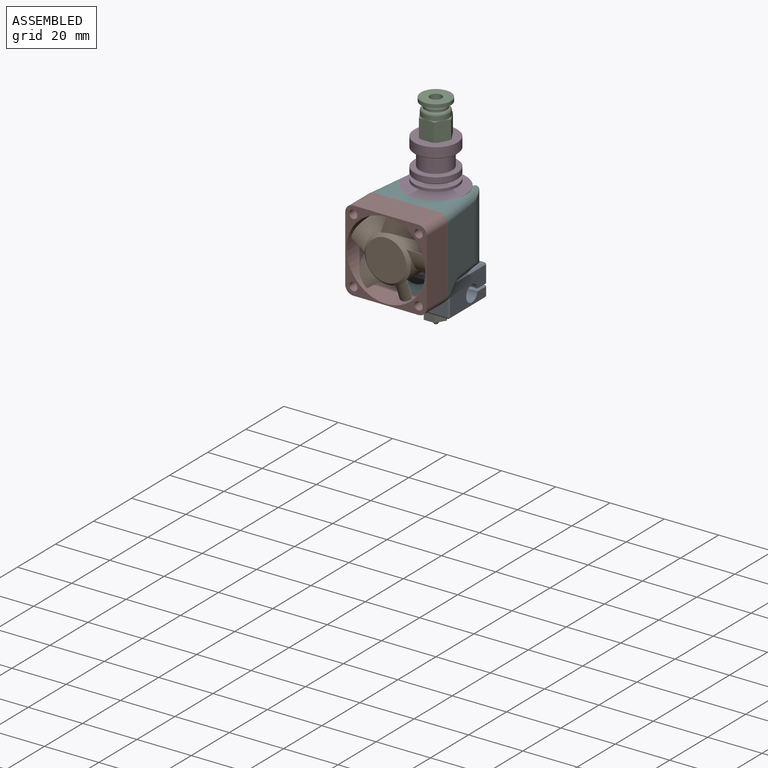
[diagram: assembled view]
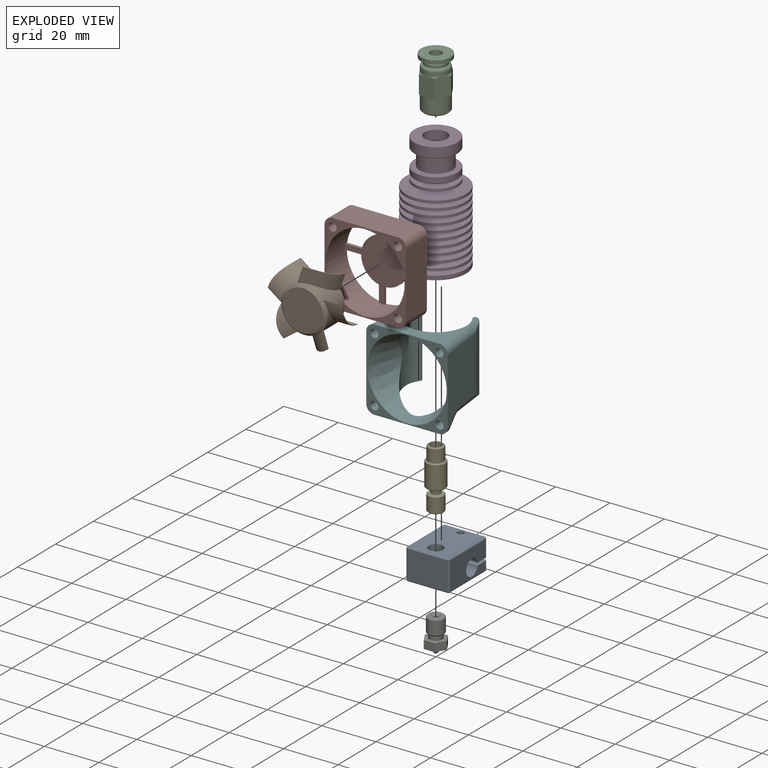
[diagram: exploded view]
GUIDED TOUR — MATED ASSEMBLY (Onshape document 2d66d5e1e2e1bf95124a7eb6, AutoMate assembly 2d66d5e1e2e1bf95124a7eb6_2da04dd0c05755130a3b2380_c94a7fb73f0819dea20de31b_default)

This assembly has 8 components, labeled P0..P7 below (a component is one placed occurrence of a part; the same part can appear more than once), held together by 7 mates. A mate is a constraint between two components; its type names the relative motion it leaves free:
  FASTENED — locks the two components together rigidly (no relative motion).
Axis/direction vectors are unit vectors and 'through' points are millimeter coordinates, both in the assembly's world frame.

MATES
  1. FASTENED "Fastened 6": P7 <-> P1, direction (0.000, -1.000, 0.000) through (-0.02, -16.20, 31.00) mm
  2. FASTENED "Fastened 2": P6 <-> P0, direction (0.000, 0.000, 1.000) through (0.00, 0.00, 5.00) mm
  3. FASTENED "Fastened 1": P6 <-> P4, direction (0.000, 0.000, 1.000) through (0.00, 0.00, 12.50) mm
  4. FASTENED "Fastened 5": P7 <-> P5, direction (0.000, 1.000, 0.000) through (11.98, -15.20, 19.00) mm
  5. FASTENED "Fastened 7": P2 <-> P3, direction (0.000, 0.000, -1.000) through (0.00, 0.00, 62.50) mm
  6. FASTENED "Fastened 4": P5 <-> P3, direction (0.000, 0.000, 1.000) through (0.00, 0.00, 46.00) mm
  7. FASTENED "Fastened 3": P3 <-> P4, direction (0.000, 0.000, -1.000) through (0.00, 0.00, 19.50) mm

ASSEMBLY ORDER
  1. P3 — the base component [order heuristic]
  2. P5 — core [order heuristic]
  3. P4 — core [order heuristic]
  4. P0 — core [order heuristic]
  5. P2 — core [order heuristic]
  6. P6 — core [order heuristic]
  7. P7 [order verified]
  8. P1 [order verified]
Order-tag legend:
  [order verified] — this step's position reverses a verified removal order: the component was checked to insert without passing through the ones already placed.
  [order heuristic] — the first 6 components form the assembly's core: parts whose collision-free extraction could not be verified, listed in mate-graph order.

Of the 8 components, 4 carry the full construction recipe — the FeatureScript program that regenerates the part's solid from scratch; the rest are supplied as boundary geometry only.
Each toured component is shown spotlighted twice — in the assembled view, then in the exploded view, where a leader line traces a displaced component back to its assembled socket (saturated green if recipe-attached, orange if geometry-only; every other component desaturated gray) — followed by its recipe or geometry summary and the mates that hold it.
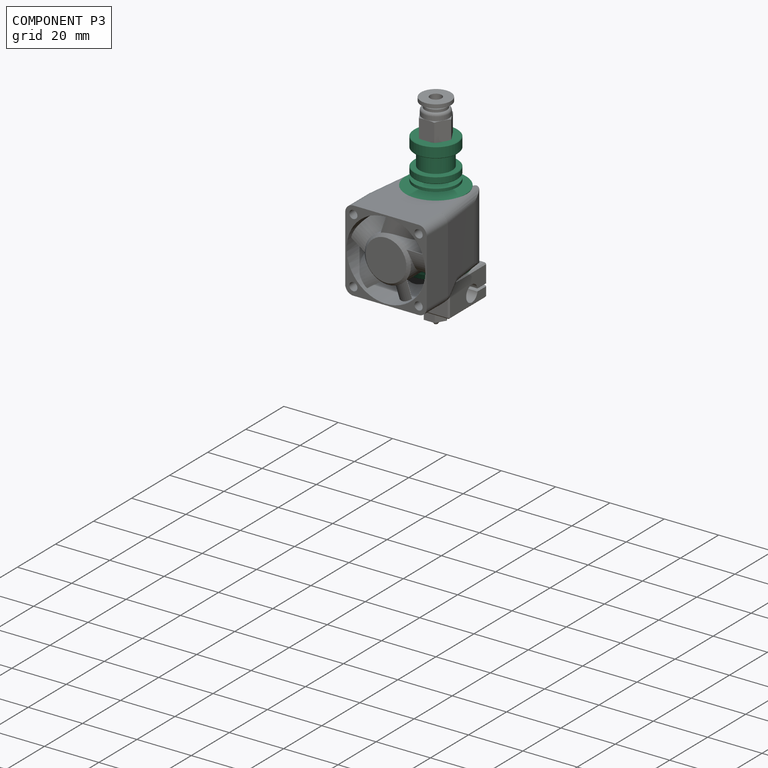
[diagram: component P3 — assembled]
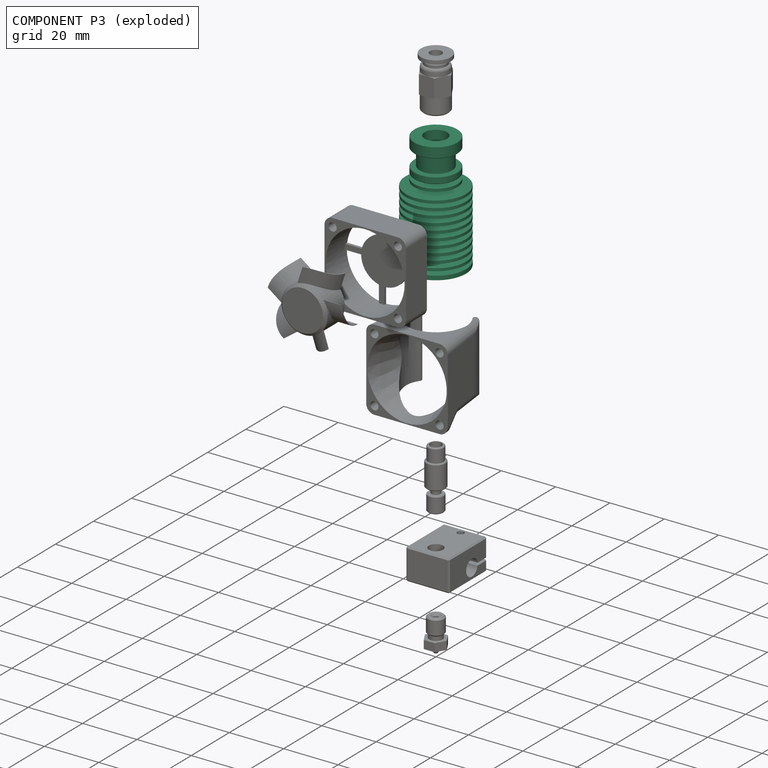
[diagram: component P3 — exploded]
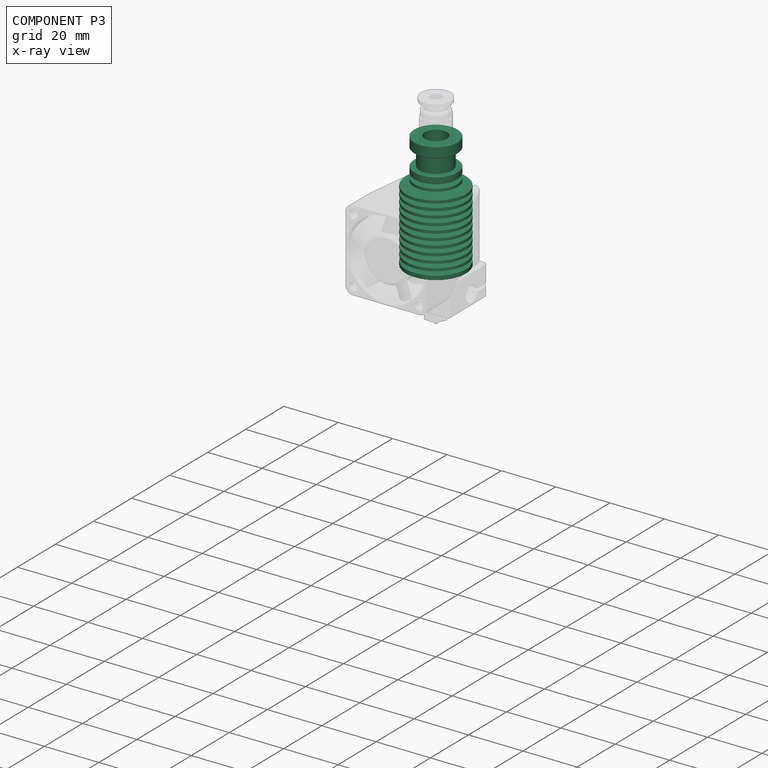
[diagram: component P3 — x-ray view]
COMPONENT P3 — recipe-attached (CADFS 00282401, mesh-verified: the recipe's output STEP matches this component's geometry to below the mesh-comparison resolution (tessellation chordal tolerance ~0.0798 mm)).
Held by: FASTENED mate "Fastened 7" to P2; FASTENED mate "Fastened 4" to P5; FASTENED mate "Fastened 3" to P4.
Construction recipe (FeatureScript — the CAD program that rebuilds this solid; sketch coordinates are in the units given by the * unit suffixes, e.g. mm):

FeatureScript 1511;
import(path : "onshape/std/geometry.fs", version : "1511.0");
import(path : "onshape/std/common.fs", version : "1511.0");
const mm = millimeter;
const VERTEX = EntityType.VERTEX;
const EDGE = EntityType.EDGE;
const FACE = EntityType.FACE;
const BODY = EntityType.BODY;
function v(x, y){return vector(x, y);}
function OD(order){return orderDisambiguation(order);}
function OSD(set){return originalSetDisambiguation(set);}
function TD(topology){return topologyDisambiguation(topology);}
function TDD(query){return trueDependencyDisambiguation(query);}
function sQuery(a, b, c) {return sketchEntityQuery(a, b, c);}

annotation { "Feature Type Name" : "Feature", "Feature Type Description" : "" }
export const myFeature = defineFeature(function(context is Context, id is Id, definition is map)
    precondition{}
    {
        {
            var Q0;
            Q0=qCreatedBy(makeId("Front.planeOp"),FACE);
            var sketch = newSketch(context, id + "F0", { "sketchPlane" : qUnion([Q0])});
            skLineSegment(sketch, "E0", {"start": v(0, 0) * mm, "end": v(0, 43) * mm, "construction": true});
            skLineSegment(sketch, "E1", {"start": v(4.1, 43) * mm, "end": v(8, 43) * mm});
            skLineSegment(sketch, "E2", {"start": v(8, 43) * mm, "end": v(8, 39) * mm});
            skLineSegment(sketch, "E3", {"start": v(8, 39) * mm, "end": v(6, 39) * mm});
            skLineSegment(sketch, "E4", {"start": v(6, 39) * mm, "end": v(6, 33) * mm});
            skLineSegment(sketch, "E5", {"start": v(6, 33) * mm, "end": v(8, 33) * mm});
            skLineSegment(sketch, "E6", {"start": v(8, 33) * mm, "end": v(8, 30.5) * mm});
            skLineSegment(sketch, "E7", {"start": v(8, 30.5) * mm, "end": v(4.1, 30.5) * mm});
            skLineSegment(sketch, "E8", {"start": v(4.1, 30.5) * mm, "end": v(4.1, 29) * mm});
            skLineSegment(sketch, "E9", {"start": v(4.1, 29) * mm, "end": v(8, 29) * mm});
            skLineSegment(sketch, "E10", {"start": v(8, 29) * mm, "end": v(8, 28) * mm});
            skLineSegment(sketch, "E11", {"start": v(8, 28) * mm, "end": v(4.1, 28) * mm});
            skLineSegment(sketch, "E12", {"start": v(4.1, 28) * mm, "end": v(4.1, 26.5) * mm});
            skLineSegment(sketch, "E13", {"start": v(4.1, 26.5) * mm, "end": v(11.1, 26.5) * mm});
            skLineSegment(sketch, "E14", {"start": v(11.1, 26.5) * mm, "end": v(11.1, 25.5) * mm});
            skLineSegment(sketch, "E15", {"start": v(11.1, 25.5) * mm, "end": v(4.1, 25.5) * mm});
            skLineSegment(sketch, "E16", {"start": v(4.1, 25.5) * mm, "end": v(4.1, 24) * mm});
            skLineSegment(sketch, "E17", {"start": v(4.1, 24) * mm, "end": v(11.1, 24) * mm});
            skLineSegment(sketch, "E18", {"start": v(11.1, 24) * mm, "end": v(11.1, 23) * mm});
            skLineSegment(sketch, "E19", {"start": v(11.1, 23) * mm, "end": v(4.1, 23) * mm});
            skLineSegment(sketch, "E20", {"start": v(4.1, 23) * mm, "end": v(4.1, 21.5) * mm});
            skLineSegment(sketch, "E21", {"start": v(4.1, 21.5) * mm, "end": v(11.1, 21.5) * mm});
            skLineSegment(sketch, "E22", {"start": v(11.1, 21.5) * mm, "end": v(11.1, 20.5) * mm});
            skLineSegment(sketch, "E23", {"start": v(11.1, 20.5) * mm, "end": v(4.1, 20.5) * mm});
            skLineSegment(sketch, "E24", {"start": v(4.1, 20.5) * mm, "end": v(4.1, 19) * mm});
            skLineSegment(sketch, "E25", {"start": v(4.1, 19) * mm, "end": v(11.1, 19) * mm});
            skLineSegment(sketch, "E26", {"start": v(11.1, 19) * mm, "end": v(11.1, 18) * mm});
            skLineSegment(sketch, "E27", {"start": v(11.1, 18) * mm, "end": v(4.1, 18) * mm});
            skLineSegment(sketch, "E28", {"start": v(4.1, 18) * mm, "end": v(4.1, 16.5) * mm});
            skLineSegment(sketch, "E29", {"start": v(4.1, 16.5) * mm, "end": v(11.1, 16.5) * mm});
            skLineSegment(sketch, "E30", {"start": v(11.1, 16.5) * mm, "end": v(11.1, 15.5) * mm});
            skLineSegment(sketch, "E31", {"start": v(11.1, 15.5) * mm, "end": v(4.1, 15.5) * mm});
            skLineSegment(sketch, "E32", {"start": v(4.1, 15.5) * mm, "end": v(4.1, 14) * mm});
            skLineSegment(sketch, "E33", {"start": v(4.1, 14) * mm, "end": v(11.1, 14) * mm});
            skLineSegment(sketch, "E34", {"start": v(11.1, 14) * mm, "end": v(11.1, 13) * mm});
            skLineSegment(sketch, "E35", {"start": v(11.1, 13) * mm, "end": v(4.1, 13) * mm});
            skLineSegment(sketch, "E36", {"start": v(4.1, 13) * mm, "end": v(4.1, 11.5) * mm});
            skLineSegment(sketch, "E37", {"start": v(4.1, 11.5) * mm, "end": v(11.1, 11.5) * mm});
            skLineSegment(sketch, "E38", {"start": v(11.1, 11.5) * mm, "end": v(11.1, 10.5) * mm});
            skLineSegment(sketch, "E39", {"start": v(11.1, 10.5) * mm, "end": v(4.1, 10.5) * mm});
            skLineSegment(sketch, "E40", {"start": v(4.1, 10.5) * mm, "end": v(4.1, 9) * mm});
            skLineSegment(sketch, "E41", {"start": v(4.1, 9) * mm, "end": v(11.1, 9) * mm});
            skLineSegment(sketch, "E42", {"start": v(11.1, 9) * mm, "end": v(11.1, 8) * mm});
            skLineSegment(sketch, "E43", {"start": v(11.1, 8) * mm, "end": v(4.1, 8) * mm});
            skLineSegment(sketch, "E44", {"start": v(4.1, 8) * mm, "end": v(4.1, 6.5) * mm});
            skLineSegment(sketch, "E45", {"start": v(4.1, 6.5) * mm, "end": v(11.1, 6.5) * mm});
            skLineSegment(sketch, "E46", {"start": v(11.1, 6.5) * mm, "end": v(11.1, 5.5) * mm});
            skLineSegment(sketch, "E47", {"start": v(11.1, 5.5) * mm, "end": v(4.1, 5.5) * mm});
            skLineSegment(sketch, "E48", {"start": v(4.1, 5.5) * mm, "end": v(4.1, 4) * mm});
            skLineSegment(sketch, "E49", {"start": v(4.1, 4) * mm, "end": v(11.1, 4) * mm});
            skLineSegment(sketch, "E50", {"start": v(11.1, 4) * mm, "end": v(11.1, 3) * mm});
            skLineSegment(sketch, "E51", {"start": v(11.1, 3) * mm, "end": v(4.1, 3) * mm});
            skLineSegment(sketch, "E52", {"start": v(4.1, 3) * mm, "end": v(4.1, 1.5) * mm});
            skLineSegment(sketch, "E53", {"start": v(4.1, 1.5) * mm, "end": v(11.1, 1.5) * mm});
            skLineSegment(sketch, "E54", {"start": v(11.1, 1.5) * mm, "end": v(11.1, 0) * mm});
            skLineSegment(sketch, "E55", {"start": v(11.1, 0) * mm, "end": v(3, 0) * mm});
            skLineSegment(sketch, "E56", {"start": v(4.1, 43) * mm, "end": v(4.1, 32.5) * mm});
            skLineSegment(sketch, "E57", {"start": v(4.1, 32.5) * mm, "end": v(2.1, 31.3) * mm});
            skLineSegment(sketch, "E58", {"start": v(2.1, 31.3) * mm, "end": v(2.1, 17.04) * mm});
            skLineSegment(sketch, "E59", {"start": v(2.1, 17.04) * mm, "end": v(3, 16.5) * mm});
            skLineSegment(sketch, "E60", {"start": v(3, 16.5) * mm, "end": v(3, 0) * mm});
            skSolve(sketch);
        }
        {
            var Q0;
            Q0=qSketchRegion(id+"F0",true);
            var Q1;
            Q1=sQuery(id+"F0.wireOp",EDGE,"E0");
            revolve(context, id + "F1", {"entities" : qUnion([Q0]), "axis" : qUnion([Q1]), "revolveType" : RevolveType.FULL});
        }
        {
            var Q0;
            Q0=makeQuery(id+"F1.opRevolve","SWEPT_EDGE",EDGE,{"disambiguationData":[OSD([sQuery(id+"F0.wireOp",EDGE,"E6"),sQuery(id+"F0.wireOp",EDGE,"E7")])]});
            var Q1;
            Q1=makeQuery(id+"F1.opRevolve","SWEPT_EDGE",EDGE,{"disambiguationData":[OSD([sQuery(id+"F0.wireOp",EDGE,"E5"),sQuery(id+"F0.wireOp",EDGE,"E6")])]});
            var Q2;
            Q2=makeQuery(id+"F1.opRevolve","SWEPT_EDGE",EDGE,{"disambiguationData":[OSD([sQuery(id+"F0.wireOp",EDGE,"E2"),sQuery(id+"F0.wireOp",EDGE,"E3")])]});
            var Q3;
            Q3=makeQuery(id+"F1.opRevolve","SWEPT_EDGE",EDGE,{"disambiguationData":[OSD([sQuery(id+"F0.wireOp",EDGE,"E1"),sQuery(id+"F0.wireOp",EDGE,"E2")])]});
            chamfer(context, id + "F2", {"entities" : qUnion([Q0, Q1, Q2, Q3]), "width" : 0.2 * mm, "tangentPropagation" : true});
        }
    });
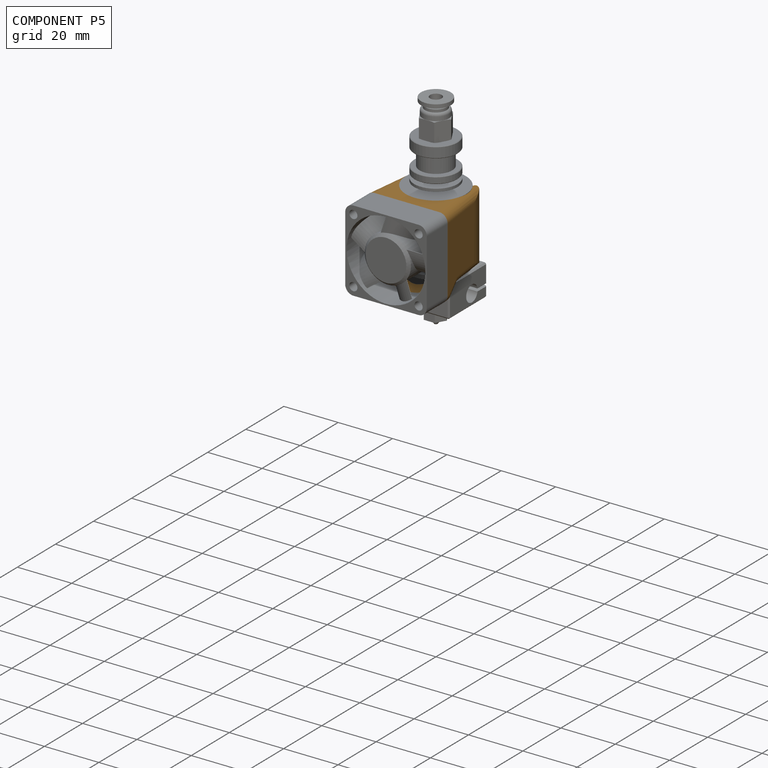
[diagram: component P5 — assembled]
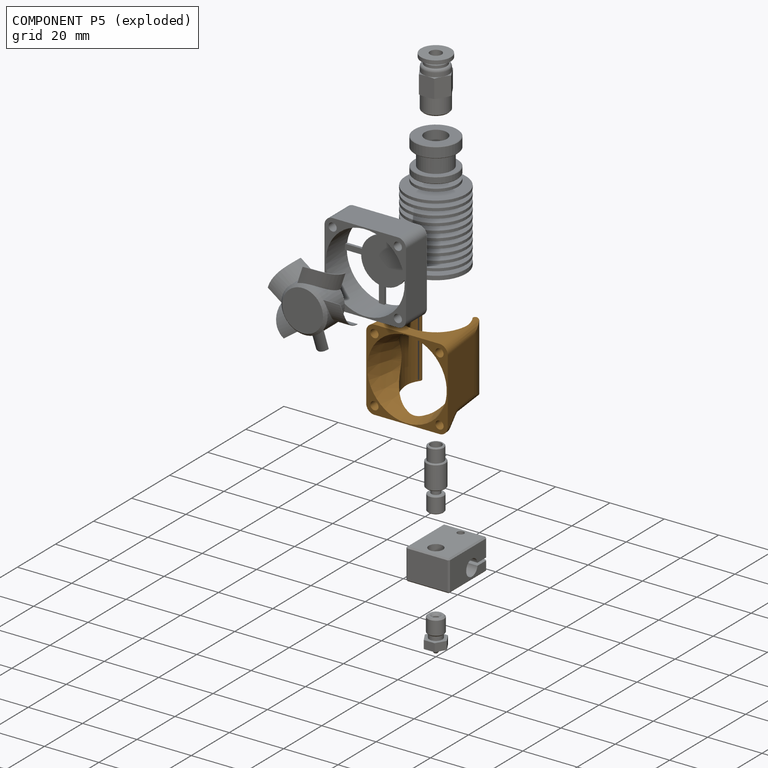
[diagram: component P5 — exploded]
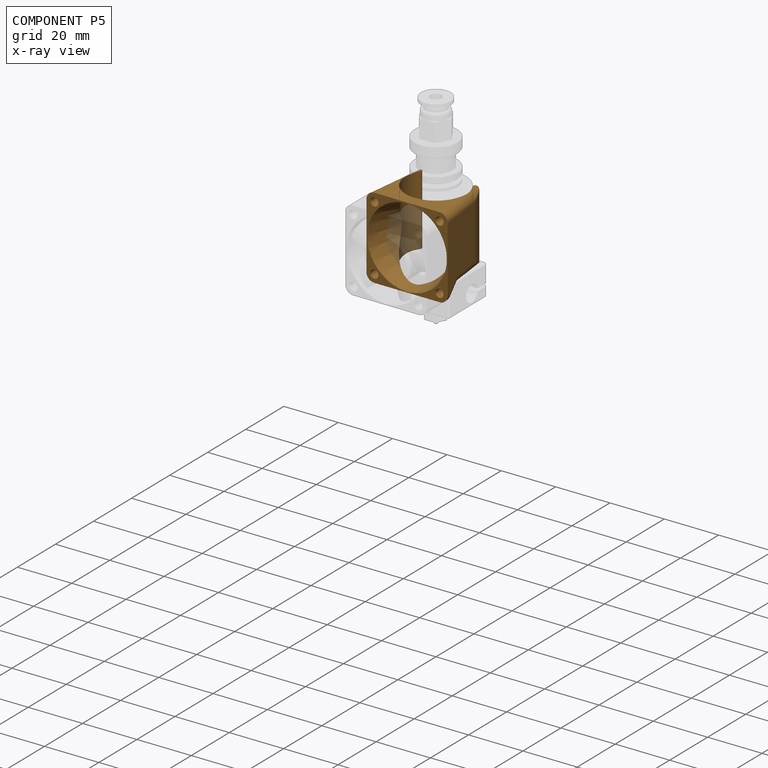
[diagram: component P5 — x-ray view]
COMPONENT P5 — geometry summary (no construction recipe available for this part):
  bounding box: 30.4 x 30.4 x 23.2 mm
  B-rep topology: 1 solid, 39 faces, 216 edges
  volume: 3423 mm^3 (16% of its bounding box)
  symmetry: mirror-symmetric across its y mid-plane
Held by: FASTENED mate "Fastened 5" to P7; FASTENED mate "Fastened 4" to P3.
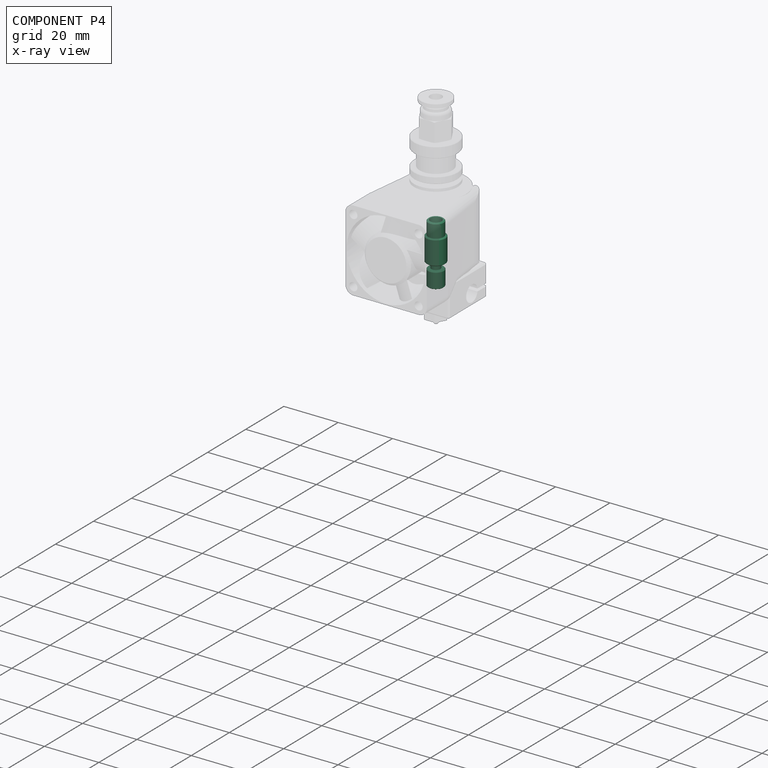
[diagram: component P4 — x-ray view]
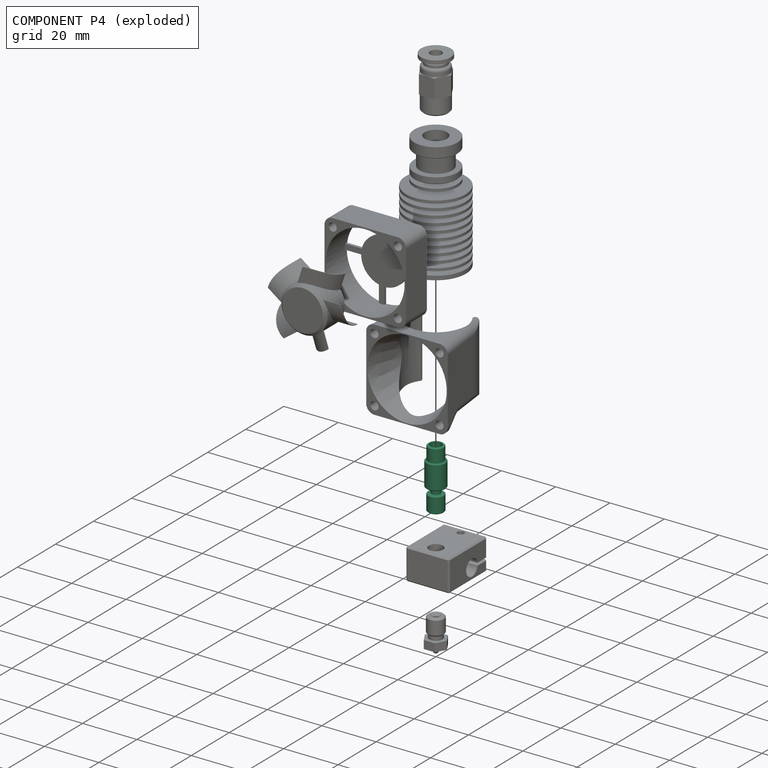
[diagram: component P4 — exploded]
COMPONENT P4 — recipe-attached (CADFS 00214408, mesh-verified: the recipe's output STEP matches this component's geometry to below the mesh-comparison resolution (tessellation chordal tolerance ~0.0362 mm)).
Held by: FASTENED mate "Fastened 1" to P6; FASTENED mate "Fastened 3" to P3.
Construction recipe (FeatureScript — the CAD program that rebuilds this solid; sketch coordinates are in the units given by the * unit suffixes, e.g. mm):

FeatureScript 1511;
import(path : "onshape/std/geometry.fs", version : "1511.0");
import(path : "onshape/std/common.fs", version : "1511.0");
const mm = millimeter;
const VERTEX = EntityType.VERTEX;
const EDGE = EntityType.EDGE;
const FACE = EntityType.FACE;
const BODY = EntityType.BODY;
function v(x, y){return vector(x, y);}
function OD(order){return orderDisambiguation(order);}
function OSD(set){return originalSetDisambiguation(set);}
function TD(topology){return topologyDisambiguation(topology);}
function TDD(query){return trueDependencyDisambiguation(query);}
function sQuery(a, b, c) {return sketchEntityQuery(a, b, c);}

annotation { "Feature Type Name" : "Feature", "Feature Type Description" : "" }
export const myFeature = defineFeature(function(context is Context, id is Id, definition is map)
    precondition{}
    {
        {
            var Q0;
            Q0=qCreatedBy(makeId("Front.planeOp"),FACE);
            var sketch = newSketch(context, id + "F0", { "sketchPlane" : qUnion([Q0])});
            skLineSegment(sketch, "E0", {"start": v(0, 0) * mm, "end": v(0, 22) * mm, "construction": true});
            skLineSegment(sketch, "E1", {"start": v(2.1, 22) * mm, "end": v(2.1, 9) * mm});
            skLineSegment(sketch, "E2", {"start": v(2.1, 9) * mm, "end": v(1, 8.34) * mm});
            skLineSegment(sketch, "E3", {"start": v(1, 8.34) * mm, "end": v(1, 0) * mm});
            skLineSegment(sketch, "E4", {"start": v(1, 0) * mm, "end": v(2.9, 0) * mm});
            skLineSegment(sketch, "E5", {"start": v(2.9, 0) * mm, "end": v(2.9, 6) * mm});
            skLineSegment(sketch, "E6", {"start": v(2.9, 6) * mm, "end": v(1.65, 6) * mm});
            skLineSegment(sketch, "E7", {"start": v(1.65, 6) * mm, "end": v(1.65, 8) * mm});
            skLineSegment(sketch, "E8", {"start": v(1.65, 8) * mm, "end": v(3.5, 8) * mm});
            skLineSegment(sketch, "E9", {"start": v(3.5, 8) * mm, "end": v(3.5, 17) * mm});
            skLineSegment(sketch, "E10", {"start": v(3.5, 17) * mm, "end": v(2.85, 17) * mm});
            skLineSegment(sketch, "E11", {"start": v(2.85, 17) * mm, "end": v(2.85, 22) * mm});
            skLineSegment(sketch, "E12", {"start": v(2.85, 22) * mm, "end": v(2.1, 22) * mm});
            skSolve(sketch);
        }
        {
            var Q0;
            Q0 = qSketchRegion(id + "F0", true);
            var Q1;
            Q1=sQuery(id+"F0.wireOp",EDGE,"E0");
            revolve(context, id + "F1", {"entities" : qUnion([Q0]), "axis" : qUnion([Q1]), "revolveType" : RevolveType.FULL});
        }
        {
            var Q0;
            Q0=makeQuery(id+"F1.opRevolve","SWEPT_EDGE",EDGE,{"disambiguationData":[OSD([sQuery(id+"F0.wireOp",EDGE,"E11"),sQuery(id+"F0.wireOp",EDGE,"E12")])]});
            var Q1;
            Q1=makeQuery(id+"F1.opRevolve","SWEPT_EDGE",EDGE,{"disambiguationData":[OSD([sQuery(id+"F0.wireOp",EDGE,"E9"),sQuery(id+"F0.wireOp",EDGE,"E10")])]});
            var Q2;
            Q2=makeQuery(id+"F1.opRevolve","SWEPT_EDGE",EDGE,{"disambiguationData":[OSD([sQuery(id+"F0.wireOp",EDGE,"E8"),sQuery(id+"F0.wireOp",EDGE,"E9")])]});
            var Q3;
            Q3=makeQuery(id+"F1.opRevolve","SWEPT_EDGE",EDGE,{"disambiguationData":[OSD([sQuery(id+"F0.wireOp",EDGE,"E5"),sQuery(id+"F0.wireOp",EDGE,"E6")])]});
            var Q4;
            Q4=makeQuery(id+"F1.opRevolve","SWEPT_EDGE",EDGE,{"disambiguationData":[OSD([sQuery(id+"F0.wireOp",EDGE,"E4"),sQuery(id+"F0.wireOp",EDGE,"E5")])]});
            chamfer(context, id + "F2", {"entities" : qUnion([Q0, Q1, Q2, Q3, Q4]), "width" : 0.3 * mm, "tangentPropagation" : true});
        }
    });
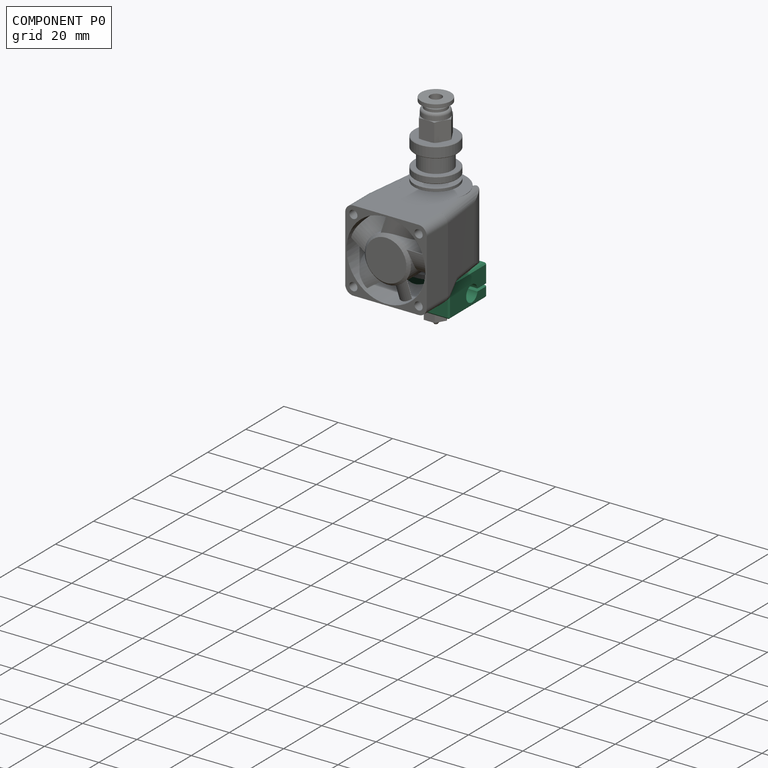
[diagram: component P0 — assembled]
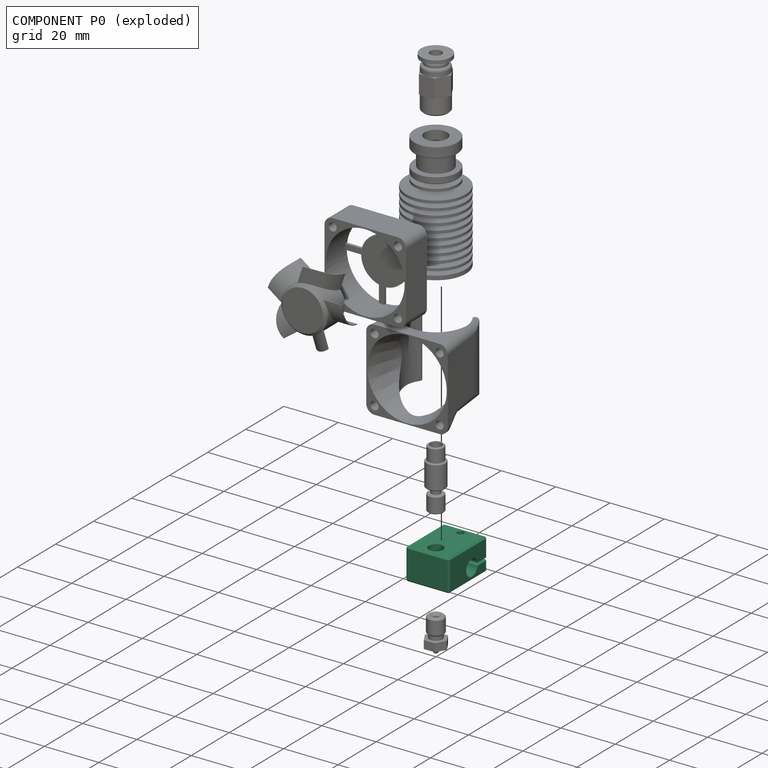
[diagram: component P0 — exploded]
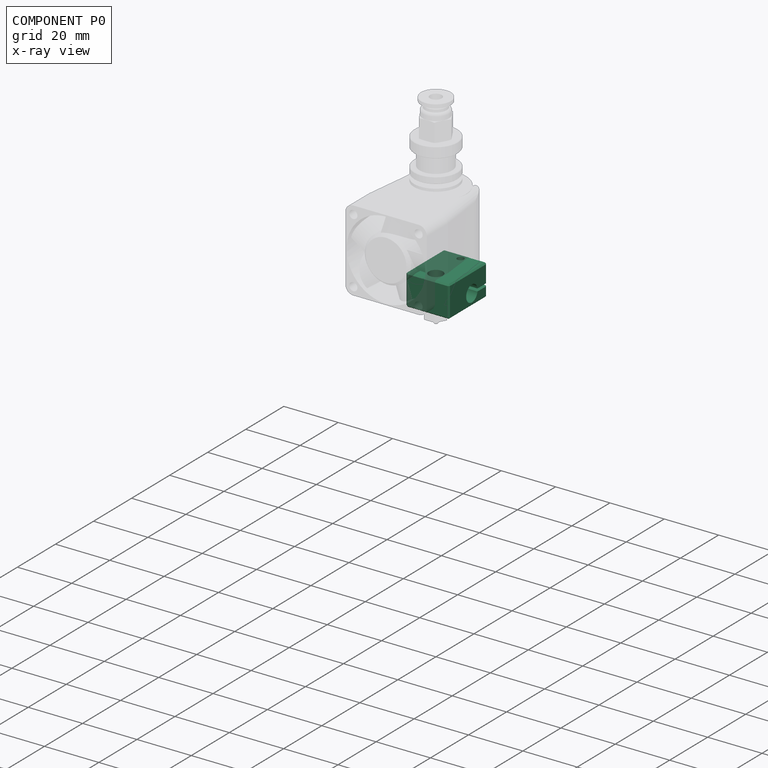
[diagram: component P0 — x-ray view]
COMPONENT P0 — recipe-attached (CADFS 00282406, mesh-verified: the recipe's output STEP matches this component's geometry to below the mesh-comparison resolution (tessellation chordal tolerance ~0.0422 mm)).
Held by: FASTENED mate "Fastened 2" to P6.
Construction recipe (FeatureScript — the CAD program that rebuilds this solid; sketch coordinates are in the units given by the * unit suffixes, e.g. mm):

FeatureScript 1511;
import(path : "onshape/std/geometry.fs", version : "1511.0");
import(path : "onshape/std/common.fs", version : "1511.0");
const mm = millimeter;
const VERTEX = EntityType.VERTEX;
const EDGE = EntityType.EDGE;
const FACE = EntityType.FACE;
const BODY = EntityType.BODY;
function v(x, y){return vector(x, y);}
function OD(order){return orderDisambiguation(order);}
function OSD(set){return originalSetDisambiguation(set);}
function TD(topology){return topologyDisambiguation(topology);}
function TDD(query){return trueDependencyDisambiguation(query);}
function sQuery(a, b, c) {return sketchEntityQuery(a, b, c);}

annotation { "Feature Type Name" : "Feature", "Feature Type Description" : "" }
export const myFeature = defineFeature(function(context is Context, id is Id, definition is map)
    precondition{}
    {
        {
            var Q0;
            Q0=qCreatedBy(makeId("Top.planeOp"),FACE);
            var sketch = newSketch(context, id + "F0", { "sketchPlane" : qUnion([Q0])});
            skLineSegment(sketch, "E0.bottom", {"start": v(0, 0) * mm, "end": v(16, 0) * mm});
            skLineSegment(sketch, "E0.top", {"start": v(0, 20) * mm, "end": v(16, 20) * mm});
            skLineSegment(sketch, "E0.left", {"start": v(0, 0) * mm, "end": v(0, 20) * mm});
            skLineSegment(sketch, "E0.right", {"start": v(16, 0) * mm, "end": v(16, 20) * mm});
            skCircle(sketch, "E1", {"center": v(8, 4.5) * mm, "radius": 2.6 * mm});
            skCircle(sketch, "E2", {"center": v(8, 17.5) * mm, "radius": 1.25 * mm});
            skSolve(sketch);
        }
        {
            var Q0;
            Q0=qSketchRegion(id+"F0",true);
            extrude(context, id + "F1", {"entities" : qUnion([Q0]), "depth" : 11.6 * mm});
        }
        {
            var Q0;
            Q0=makeQuery(id+"F1.opExtrude","SWEPT_FACE",FACE,{"disambiguationData":[OSD([sQuery(id+"F0.wireOp",EDGE,"E0.right")])]});
            var sketch = newSketch(context, id + "F2", { "sketchPlane" : qUnion([Q0])});
            skArc(sketch, "E3", {"start": v(14.96, 7.85) * mm, "mid": v(9, 7.35) * mm, "end": v(14.96, 6.85) * mm});
            skLineSegment(sketch, "E4", {"start": v(12, 7.35) * mm, "end": v(20, 7.35) * mm, "construction": true});
            skLineSegment(sketch, "E5.0", {"start": v(14.96, 6.85) * mm, "end": v(21.96, 6.85) * mm});
            skLineSegment(sketch, "E6.0", {"start": v(14.96, 7.85) * mm, "end": v(21.96, 7.85) * mm});
            skLineSegment(sketch, "E7", {"start": v(21.96, 7.85) * mm, "end": v(21.96, 6.85) * mm});
            skSolve(sketch);
        }
        {
            var Q0;
            Q0=qSketchRegion(id+"F2",true);
            extrude(context, id + "F3", {"entities" : qUnion([Q0]), "operationType" : NewBodyOperationType.REMOVE, "endBound" : BoundingType.THROUGH_ALL, "oppositeDirection" : true, "depth" : 25 * mm});
        }
        {
            var Q0;
            Q0=makeQuery(id+"F1.opExtrude","SWEPT_FACE",FACE,{"disambiguationData":[OSD([sQuery(id+"F0.wireOp",EDGE,"E0.right")])]});
            var sketch = newSketch(context, id + "F4", { "sketchPlane" : qUnion([Q0])});
            skCircle(sketch, "E8", {"center": v(2, 9.6) * mm, "radius": 1.25 * mm});
            skCircle(sketch, "E9", {"center": v(3.5, 5.6) * mm, "radius": 1.25 * mm});
            skSolve(sketch);
        }
        {
            var Q0;
            Q0=qSketchRegion(id+"F4",true);
            extrude(context, id + "F5", {"entities" : qUnion([Q0]), "operationType" : NewBodyOperationType.REMOVE, "oppositeDirection" : true, "depth" : 5 * mm});
        }
        {
            var Q0;
            Q0=makeQuery(id+"F1.opExtrude","SWEPT_FACE",FACE,{"disambiguationData":[OSD([sQuery(id+"F0.wireOp",EDGE,"E0.bottom")])]});
            var Q1;
            Q1=makeQuery(id+"F1.opExtrude","CAP_EDGE",EDGE,{"disambiguationData":[OSD([sQuery(id+"F0.wireOp",EDGE,"E0.right")])],"isStart":false});
            var Q2;
            Q2=makeQuery(id+"F1.opExtrude","CAP_EDGE",EDGE,{"disambiguationData":[OSD([sQuery(id+"F0.wireOp",EDGE,"E0.right")])],"isStart":true});
            var Q3;
            {var subQ0=sQuery(id+"F0.wireOp",EDGE,"E0.right");var subQ1=sQuery(id+"F0.wireOp",EDGE,"E0.top");Q3=makeQuery(id+"F3.boolean.opBoolean","SPLIT",EDGE,{"disambiguationData":[TD([makeQuery(id+"F3.opExtrude","SWEPT_FACE",FACE,{"disambiguationData":[OSD([sQuery(id+"F2.wireOp",EDGE,"E5.0")])]})])],"derivedFrom":makeQuery(id+"F1.opExtrude","SWEPT_EDGE",EDGE,{"disambiguationData":[OSD([subQ1,subQ0])]})});}
            var Q4;
            {var subQ0=sQuery(id+"F0.wireOp",EDGE,"E0.right");var subQ1=sQuery(id+"F0.wireOp",EDGE,"E0.top");Q4=makeQuery(id+"F3.boolean.opBoolean","SPLIT",EDGE,{"disambiguationData":[TD([makeQuery(id+"F3.opExtrude","SWEPT_FACE",FACE,{"disambiguationData":[OSD([sQuery(id+"F2.wireOp",EDGE,"E6.0")])]})])],"derivedFrom":makeQuery(id+"F1.opExtrude","SWEPT_EDGE",EDGE,{"disambiguationData":[OSD([subQ1,subQ0])]})});}
            var Q5;
            {var subQ0=sQuery(id+"F0.wireOp",EDGE,"E0.left");var subQ1=sQuery(id+"F0.wireOp",EDGE,"E0.top");Q5=makeQuery(id+"F3.boolean.opBoolean","SPLIT",EDGE,{"disambiguationData":[TD([makeQuery(id+"F3.opExtrude","SWEPT_FACE",FACE,{"disambiguationData":[OSD([sQuery(id+"F2.wireOp",EDGE,"E6.0")])]})])],"derivedFrom":makeQuery(id+"F1.opExtrude","SWEPT_EDGE",EDGE,{"disambiguationData":[OSD([subQ1,subQ0])]})});}
            var Q6;
            Q6=makeQuery(id+"F1.opExtrude","CAP_EDGE",EDGE,{"disambiguationData":[OSD([sQuery(id+"F0.wireOp",EDGE,"E0.top")])],"isStart":false});
            var Q7;
            Q7=makeQuery(id+"F1.opExtrude","CAP_EDGE",EDGE,{"disambiguationData":[OSD([sQuery(id+"F0.wireOp",EDGE,"E0.top")])],"isStart":true});
            var Q8;
            {var subQ0=sQuery(id+"F0.wireOp",EDGE,"E0.left");var subQ1=sQuery(id+"F0.wireOp",EDGE,"E0.top");Q8=makeQuery(id+"F3.boolean.opBoolean","SPLIT",EDGE,{"disambiguationData":[TD([makeQuery(id+"F3.opExtrude","SWEPT_FACE",FACE,{"disambiguationData":[OSD([sQuery(id+"F2.wireOp",EDGE,"E5.0")])]})])],"derivedFrom":makeQuery(id+"F1.opExtrude","SWEPT_EDGE",EDGE,{"disambiguationData":[OSD([subQ1,subQ0])]})});}
            var Q9;
            Q9=makeQuery(id+"F1.opExtrude","CAP_EDGE",EDGE,{"disambiguationData":[OSD([sQuery(id+"F0.wireOp",EDGE,"E0.left")])],"isStart":false});
            var Q10;
            Q10=makeQuery(id+"F1.opExtrude","CAP_EDGE",EDGE,{"disambiguationData":[OSD([sQuery(id+"F0.wireOp",EDGE,"E0.left")])],"isStart":true});
            chamfer(context, id + "F6", {"entities" : qUnion([Q0, Q1, Q2, Q3, Q4, Q5, Q6, Q7, Q8, Q9, Q10]), "width" : 0.5 * mm, "tangentPropagation" : true});
        }
    });
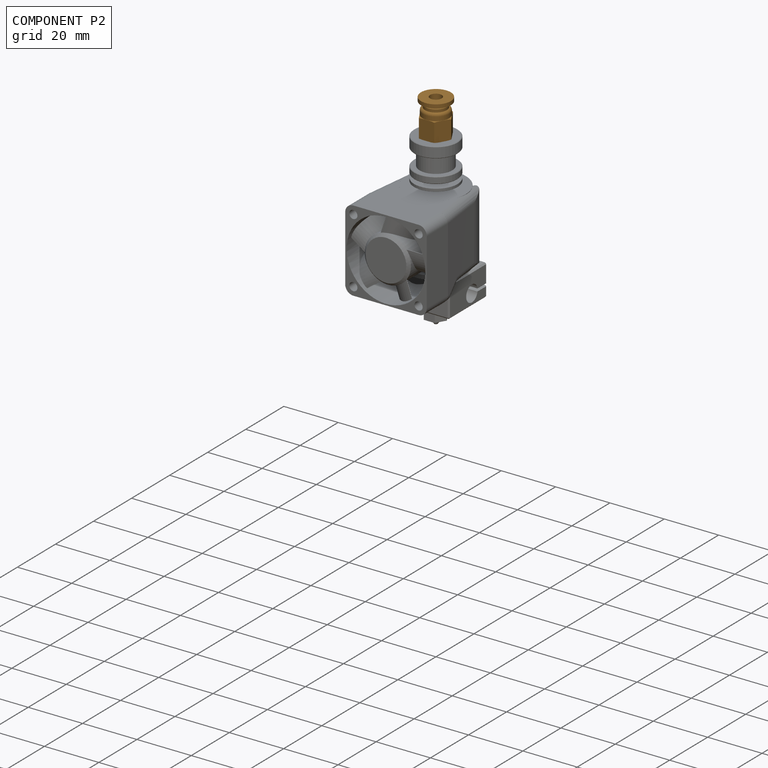
[diagram: component P2 — assembled]
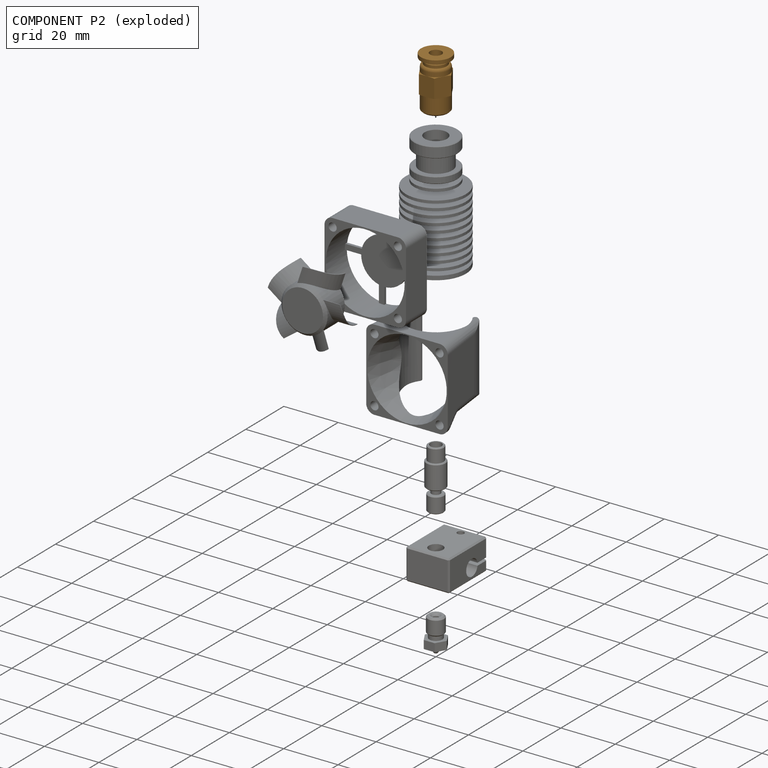
[diagram: component P2 — exploded]
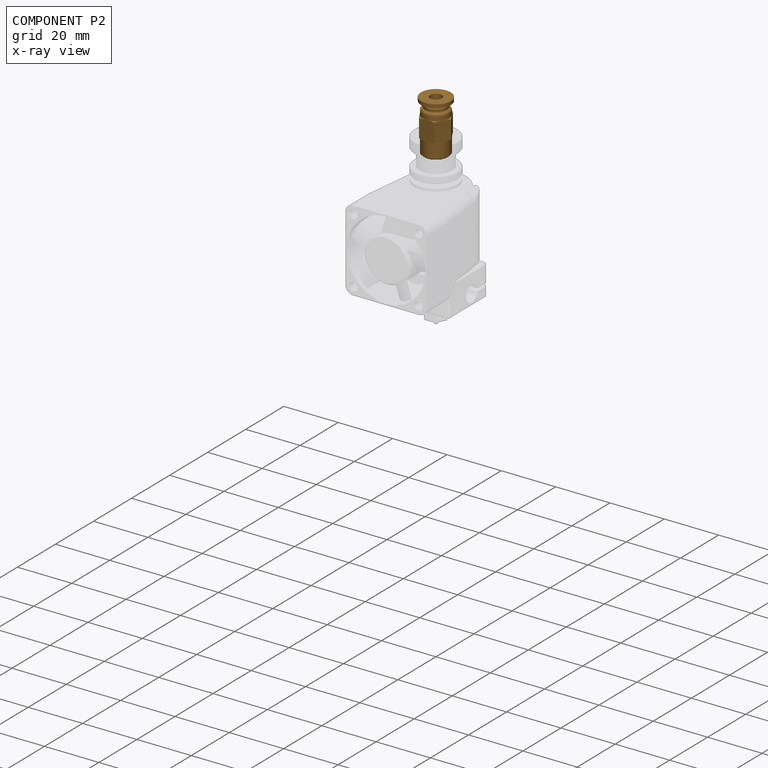
[diagram: component P2 — x-ray view]
COMPONENT P2 — geometry summary (no construction recipe available for this part):
  bounding box: 19.0 x 14.0 x 14.0 mm
  B-rep topology: 1 solid, 21 faces, 86 edges
  volume: 1145 mm^3 (31% of its bounding box)
  symmetry: 6-fold rotationally symmetric about the z axis; mirror-symmetric across its x mid-plane, y mid-plane
Held by: FASTENED mate "Fastened 7" to P3.
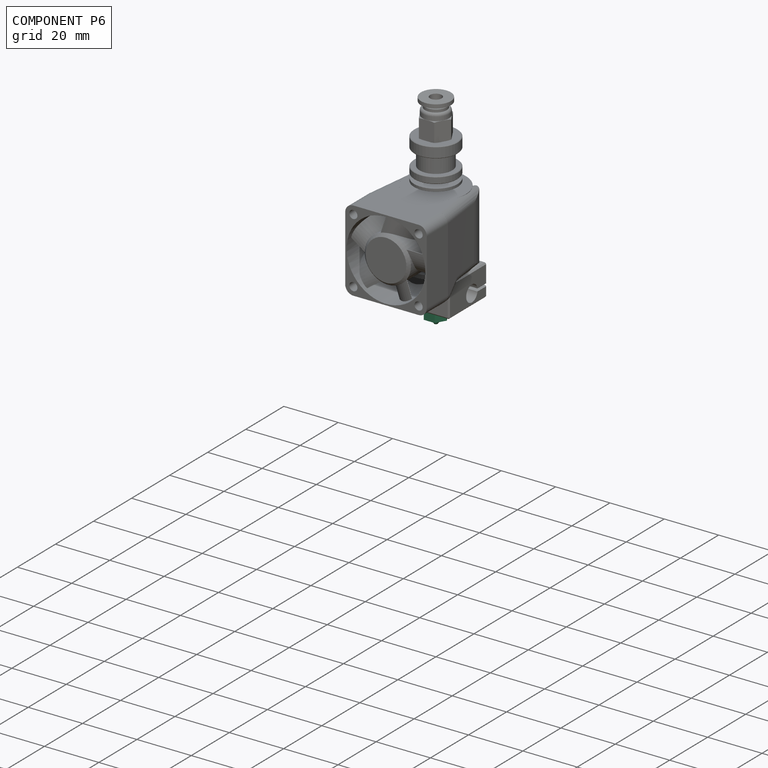
[diagram: component P6 — assembled]
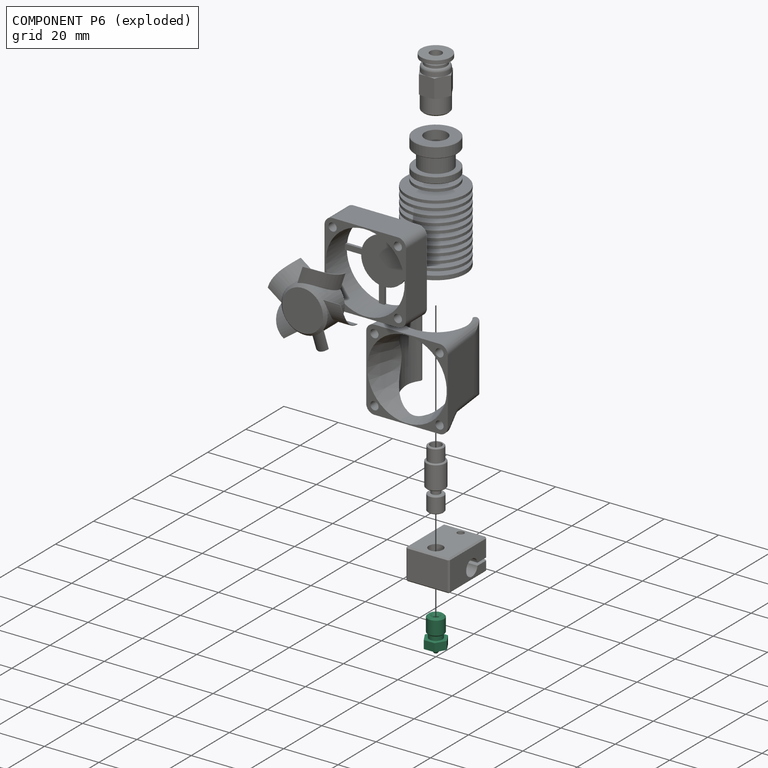
[diagram: component P6 — exploded]
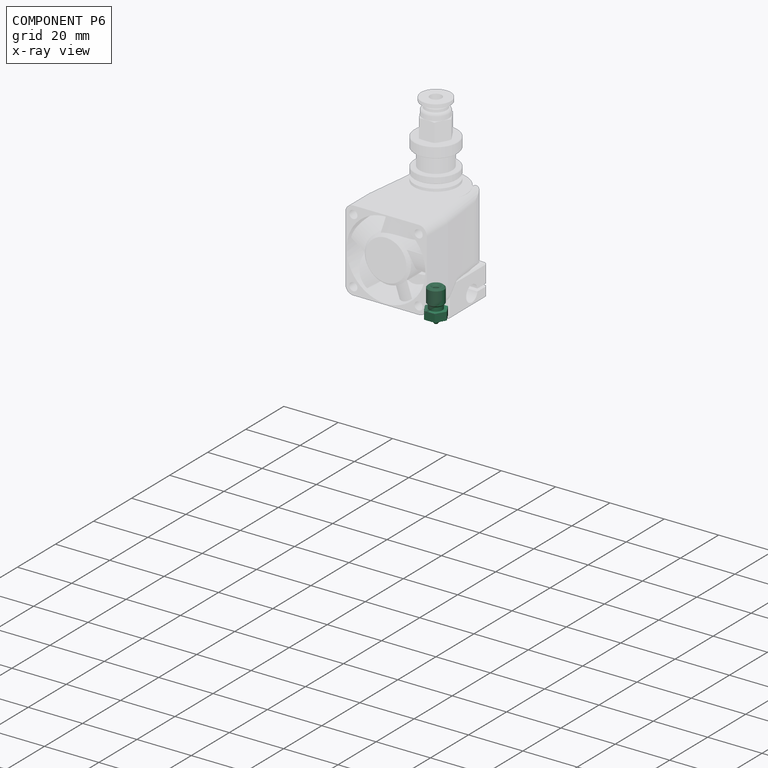
[diagram: component P6 — x-ray view]
COMPONENT P6 — recipe-attached (CADFS 00282407, mesh-verified: the recipe's output STEP matches this component's geometry to below the mesh-comparison resolution (tessellation chordal tolerance ~0.0247 mm)).
Held by: FASTENED mate "Fastened 2" to P0; FASTENED mate "Fastened 1" to P4.
Construction recipe (FeatureScript — the CAD program that rebuilds this solid; sketch coordinates are in the units given by the * unit suffixes, e.g. mm):

FeatureScript 1511;
import(path : "onshape/std/geometry.fs", version : "1511.0");
import(path : "onshape/std/common.fs", version : "1511.0");
const mm = millimeter;
const VERTEX = EntityType.VERTEX;
const EDGE = EntityType.EDGE;
const FACE = EntityType.FACE;
const BODY = EntityType.BODY;
function v(x, y){return vector(x, y);}
function OD(order){return orderDisambiguation(order);}
function OSD(set){return originalSetDisambiguation(set);}
function TD(topology){return topologyDisambiguation(topology);}
function TDD(query){return trueDependencyDisambiguation(query);}
function sQuery(a, b, c) {return sketchEntityQuery(a, b, c);}

annotation { "Feature Type Name" : "Feature", "Feature Type Description" : "" }
export const myFeature = defineFeature(function(context is Context, id is Id, definition is map)
    precondition{}
    {
        {
            var Q0;
            Q0=qCreatedBy(makeId("Front.planeOp"),FACE);
            var sketch = newSketch(context, id + "F0", { "sketchPlane" : qUnion([Q0])});
            skLineSegment(sketch, "E0", {"start": v(0, 0) * mm, "end": v(0, 12.5) * mm, "construction": true});
            skLineSegment(sketch, "E1", {"start": v(0.2, 0) * mm, "end": v(0.2, 1.5) * mm});
            skLineSegment(sketch, "E2", {"start": v(0.2, 0) * mm, "end": v(0.6, 0) * mm});
            skLineSegment(sketch, "E3", {"start": v(0.6, 0) * mm, "end": v(2.1, 2) * mm});
            skLineSegment(sketch, "E4", {"start": v(2.1, 2) * mm, "end": v(4.2, 2) * mm});
            skLineSegment(sketch, "E5", {"start": v(4.2, 2) * mm, "end": v(4.2, 5) * mm});
            skLineSegment(sketch, "E6", {"start": v(1, 12.5) * mm, "end": v(1, 1.98) * mm});
            skLineSegment(sketch, "E7", {"start": v(1, 1.98) * mm, "end": v(0.2, 1.5) * mm});
            skLineSegment(sketch, "E8", {"start": v(1, 12.5) * mm, "end": v(3, 12.5) * mm});
            skLineSegment(sketch, "E9", {"start": v(3, 12.5) * mm, "end": v(3, 6.5) * mm});
            skLineSegment(sketch, "E10", {"start": v(3, 6.5) * mm, "end": v(2.4, 6.5) * mm});
            skLineSegment(sketch, "E11", {"start": v(2.4, 6.5) * mm, "end": v(2.4, 5) * mm});
            skLineSegment(sketch, "E12", {"start": v(2.4, 5) * mm, "end": v(4.2, 5) * mm});
            skSolve(sketch);
        }
        {
            var Q0;
            Q0=qSketchRegion(id+"F0",true);
            var Q1;
            Q1=sQuery(id+"F0.wireOp",EDGE,"E0");
            revolve(context, id + "F1", {"entities" : qUnion([Q0]), "axis" : qUnion([Q1]), "revolveType" : RevolveType.FULL});
        }
        {
            var Q0;
            Q0=makeQuery(id+"F1.opRevolve","SWEPT_EDGE",EDGE,{"disambiguationData":[OSD([sQuery(id+"F0.wireOp",EDGE,"E9"),sQuery(id+"F0.wireOp",EDGE,"E10")])]});
            var Q1;
            Q1=makeQuery(id+"F1.opRevolve","SWEPT_EDGE",EDGE,{"disambiguationData":[OSD([sQuery(id+"F0.wireOp",EDGE,"E8"),sQuery(id+"F0.wireOp",EDGE,"E9")])]});
            chamfer(context, id + "F2", {"entities" : qUnion([Q0, Q1]), "width" : 0.5 * mm, "tangentPropagation" : true});
        }
        {
            var Q0;
            Q0=makeQuery(id+"F1.opRevolve","SWEPT_EDGE",EDGE,{"disambiguationData":[OSD([sQuery(id+"F0.wireOp",EDGE,"E6"),sQuery(id+"F0.wireOp",EDGE,"E8")])]});
            chamfer(context, id + "F3", {"entities" : qUnion([Q0]), "width" : 0.75 * mm, "tangentPropagation" : true});
        }
        {
            var Q0;
            Q0=makeQuery(id+"F1.opRevolve","SWEPT_FACE",FACE,{"disambiguationData":[OSD([sQuery(id+"F0.wireOp",EDGE,"E4")])]});
            var sketch = newSketch(context, id + "F4", { "sketchPlane" : qUnion([Q0])});
            skCircle(sketch, "E13.cCircle", {"center": v(0, 0) * mm, "radius": 3.5 * mm, "construction": true});
            skLineSegment(sketch, "E13.0", {"start": v(-2.02, -3.5) * mm, "end": v(-4.04, 0) * mm});
            skLineSegment(sketch, "E13.1", {"start": v(-4.04, 0) * mm, "end": v(-2.02, 3.5) * mm});
            skLineSegment(sketch, "E13.2", {"start": v(-2.02, 3.5) * mm, "end": v(2.02, 3.5) * mm});
            skLineSegment(sketch, "E13.3", {"start": v(2.02, 3.5) * mm, "end": v(4.04, 0) * mm});
            skLineSegment(sketch, "E13.4", {"start": v(4.04, 0) * mm, "end": v(2.02, -3.5) * mm});
            skLineSegment(sketch, "E13.5", {"start": v(2.02, -3.5) * mm, "end": v(-2.02, -3.5) * mm});
            skPoint(sketch, "E13.0.midPoint", {"position": v(-3.03, -1.75) * mm});
            skLineSegment(sketch, "E14", {"start": v(-4.04, 0) * mm, "end": v(0, 0) * mm, "construction": true});
            skCircle(sketch, "E15", {"center": v(0, 0) * mm, "radius": 5 * mm});
            skSolve(sketch);
        }
        {
            var Q0;
            Q0=qSketchRegion(id+"F4",true);
            extrude(context, id + "F5", {"entities" : qUnion([Q0]), "operationType" : NewBodyOperationType.REMOVE, "endBound" : BoundingType.THROUGH_ALL, "oppositeDirection" : true, "depth" : 25 * mm});
        }
    });
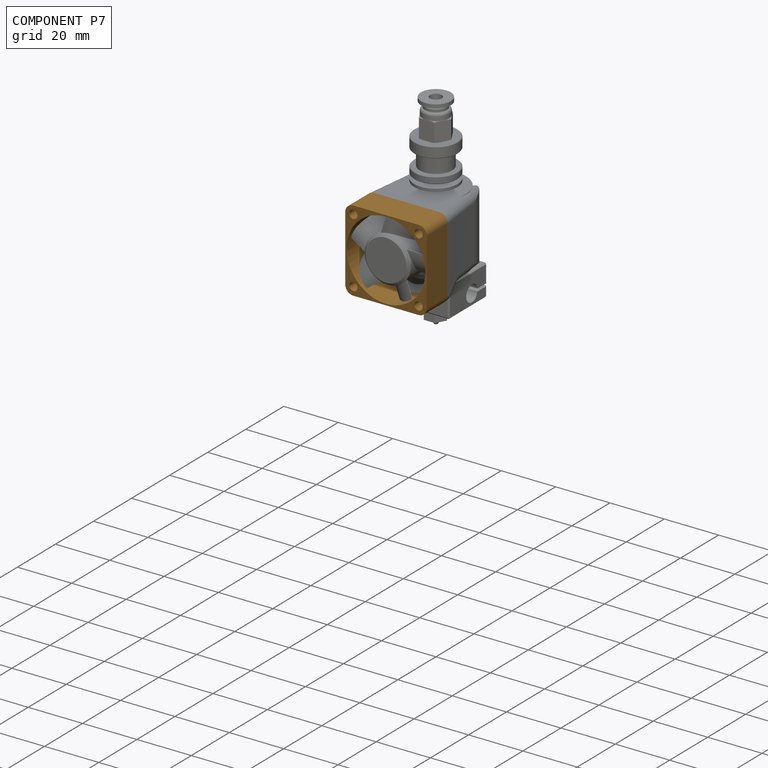
[diagram: component P7 — assembled]
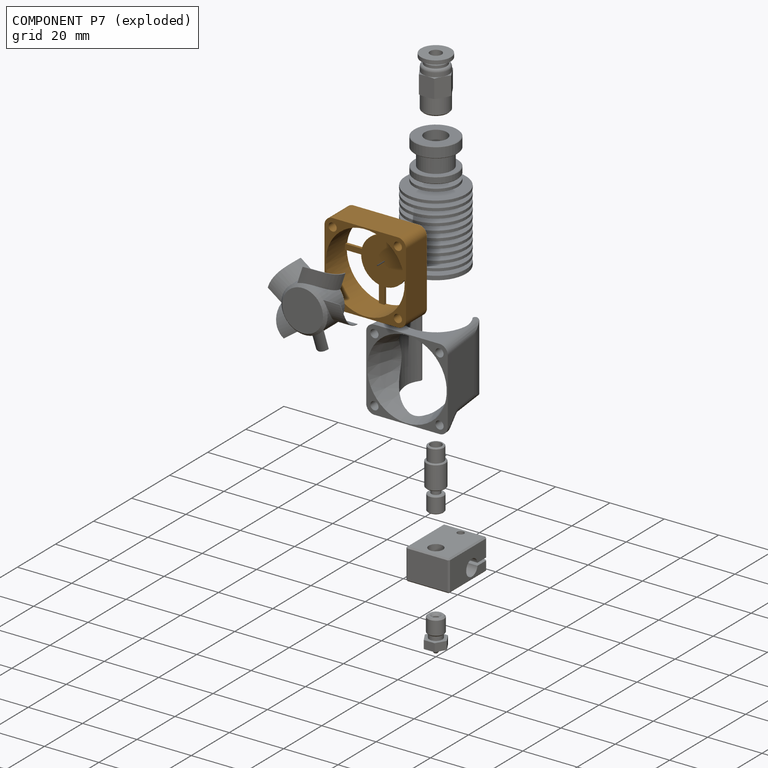
[diagram: component P7 — exploded]
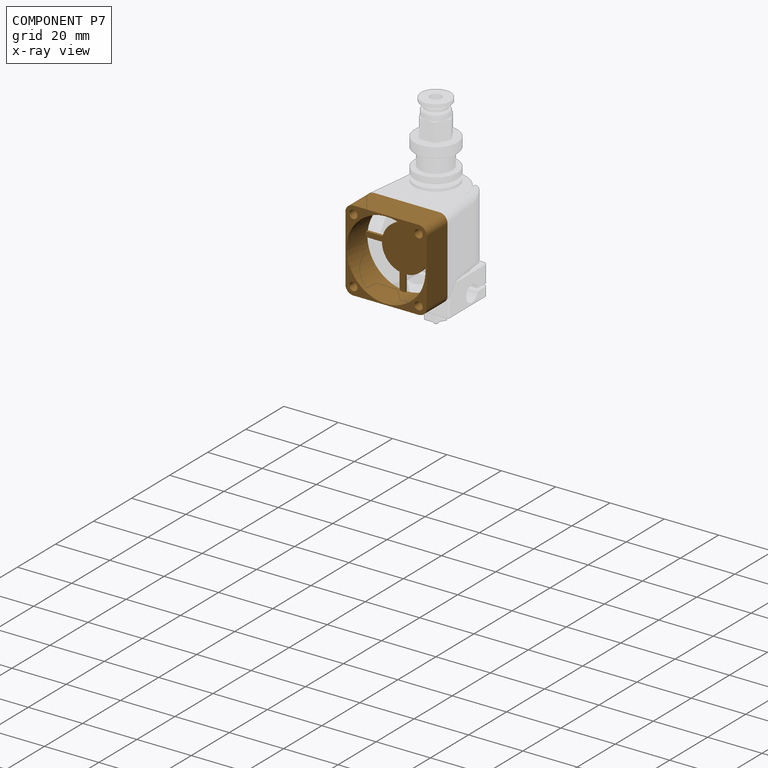
[diagram: component P7 — x-ray view]
COMPONENT P7 — geometry summary (no construction recipe available for this part):
  bounding box: 30.0 x 30.0 x 11.0 mm
  B-rep topology: 1 solid, 28 faces, 172 edges
  volume: 2514 mm^3 (25% of its bounding box)
  symmetry: 4-fold rotationally symmetric about the z axis
Held by: FASTENED mate "Fastened 6" to P1; FASTENED mate "Fastened 5" to P5.
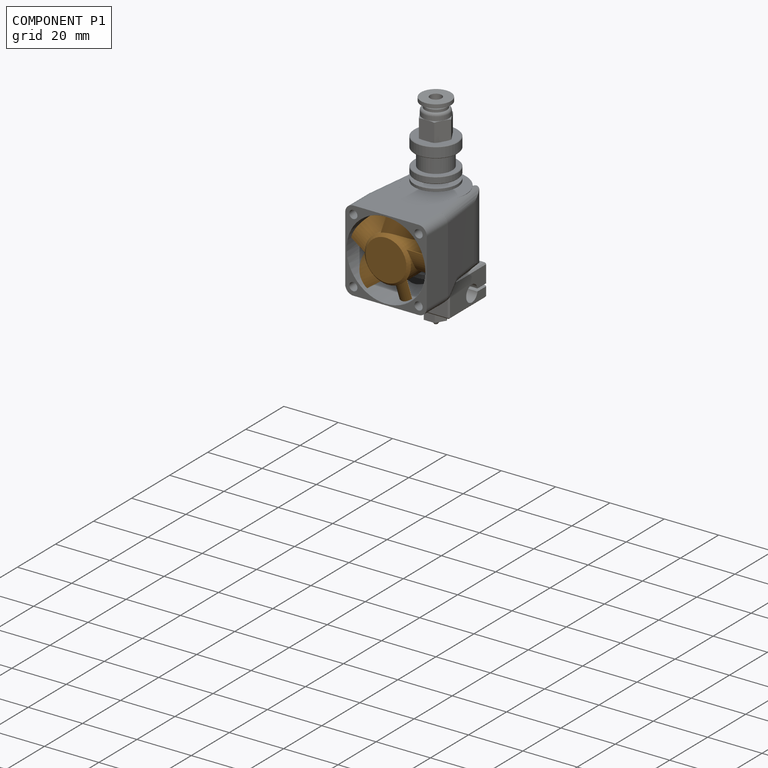
[diagram: component P1 — assembled]
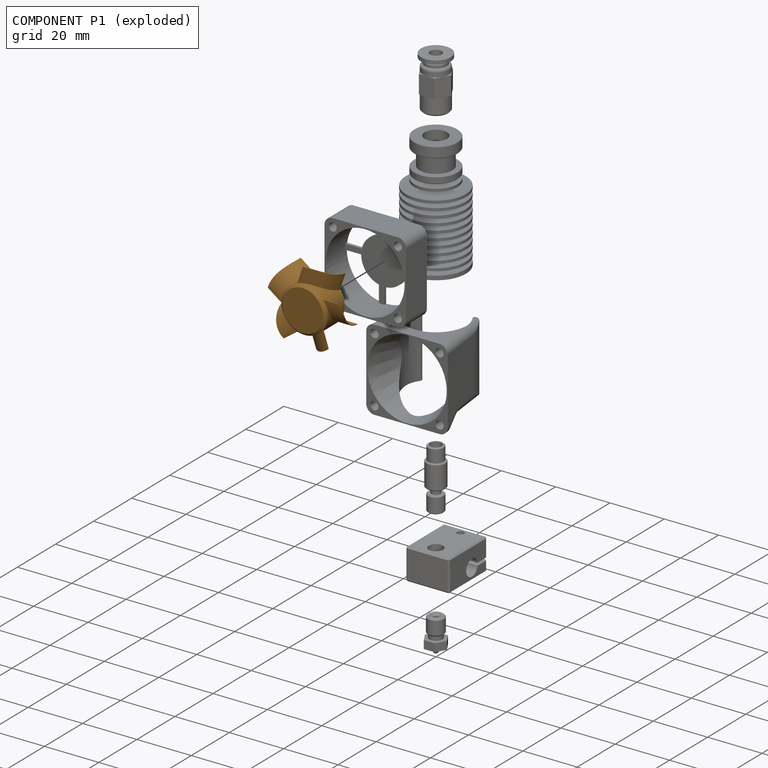
[diagram: component P1 — exploded]
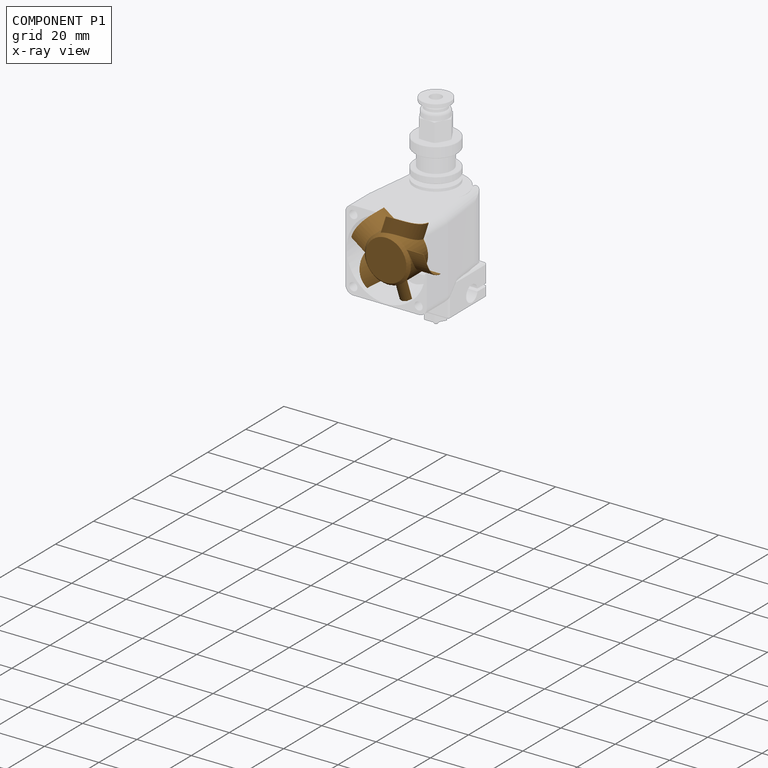
[diagram: component P1 — x-ray view]
COMPONENT P1 — geometry summary (no construction recipe available for this part):
  bounding box: 29.7 x 28.3 x 10.0 mm
  B-rep topology: 1 solid, 28 faces, 136 edges
  volume: 2328 mm^3 (28% of its bounding box)
Held by: FASTENED mate "Fastened 6" to P7.
PROVENANCE & LICENSES
Assembly (occurrences, transforms, mates, per-part STEP geometry): AutoMate dataset, Zenodo record 7776208, CC0.
Construction recipes: CADFS (HuggingFace VladPyatov/CADFS, CC-BY-4.0, layered over the ABC dataset), FeatureScript reconstruction programs keyed by ABC model id.
Join: ABC meta listings map ABC model id -> Onshape documentId; within a shared document, parts are matched by geometric signature (bounding-box dims + volume at 0.1% relative tolerance, exact B-rep face/solid counts).
Verification: 4 of this assembly's 8 components carry a recipe attachment, and every attachment is mesh-verified: the CADFS STEP and the AutoMate member STEP were compared as meshes in their shared local frame (symmetric sampled-point-to-mesh distance); worst across the 4 attachments: below the mesh-comparison resolution (tessellation chordal tolerance ~0.0798 mm) on a 53 mm part.
Renders: orthographic iso camera (az 35 / el 25); the floor grid conveys scale (grid pitch printed in each image; no ruler). In the exploded view each component is displaced by its stored offset vector: the offsets alone carry the explosion direction (mate normal/axis signs are not orientation cues and do not encode it), and separation distances are assigned per mate-chain, not proportionally to assembly-order depth.
